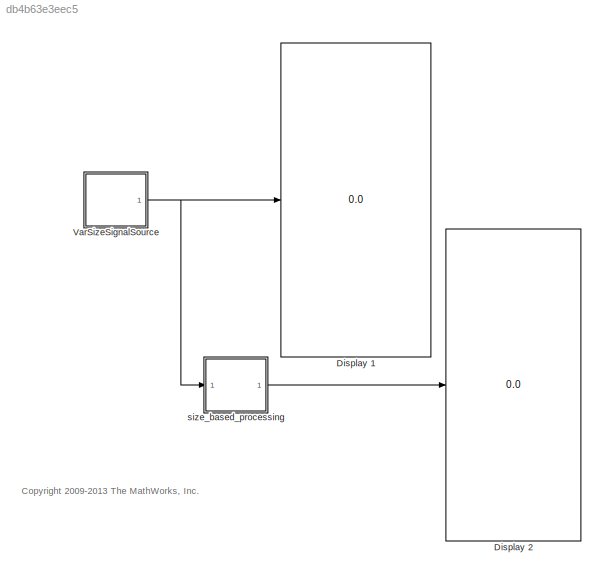
MODEL slx_db4b63e3eec5
KIND model
CONFIG AbsTol = auto
CONFIG EnableMultiTasking = on
CONFIG FixedStep = 0.05
CONFIG MaxStep = auto
CONFIG MinStep = auto
CONFIG RelTol = 1e-3
CONFIG SampleTimeConstraint = Unconstrained
CONFIG Solver = FixedStepDiscrete
CONFIG SolverName = FixedStepDiscrete
CONFIG StartTime = 0.0
CONFIG StopTime = inf
BLOCK [Display] Display 1
  Decimation = 1
  Ports = [1]
BLOCK [Display] Display 2
  Decimation = 1
  Ports = [1]
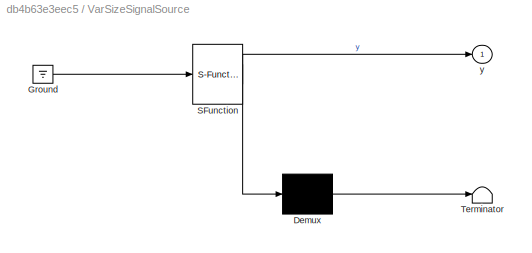
BLOCK [SubSystem] VarSizeSignalSource
  ErrorFcn = Stateflow.Translate.translate
  PermitHierarchicalResolution = ExplicitOnly
  Ports = [0, 1]
  RequestExecContextInheritance = off
  SFBlockType = Chart
  TreatAsAtomicUnit = on
  Variant = off
BLOCK [Demux] VarSizeSignalSource/ Demux 
  Outputs = 1
  Ports = [1, 1]
BLOCK [Ground] VarSizeSignalSource/ Ground 
BLOCK [S-Function] VarSizeSignalSource/ SFunction 
  EnableBusSupport = off
  FunctionName = sf_sfun
  PortCounts = [1 2]
  Ports = [1, 2]
  SFcnIsStateOwnerBlock = off
  SFunctionDeploymentMode = off
  Tag = Stateflow S-Function sf_varsize_example 1
BLOCK [Terminator] VarSizeSignalSource/ Terminator 
BLOCK [Outport] VarSizeSignalSource/y
  IconDisplay = Port number
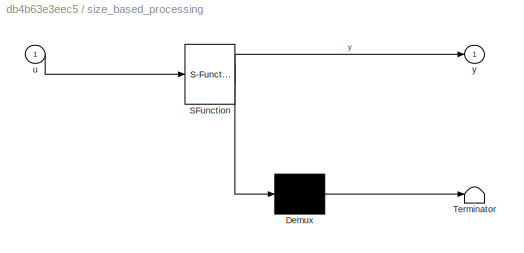
BLOCK [SubSystem] size_based_processing
  ErrorFcn = Stateflow.Translate.translate
  PermitHierarchicalResolution = ExplicitOnly
  Ports = [1, 1]
  RequestExecContextInheritance = off
  SFBlockType = Chart
  TreatAsAtomicUnit = on
  Variant = off
BLOCK [Demux] size_based_processing/ Demux 
  Outputs = 1
  Ports = [1, 1]
BLOCK [S-Function] size_based_processing/ SFunction 
  EnableBusSupport = off
  FunctionName = sf_sfun
  PortCounts = [1 2]
  Ports = [1, 2]
  SFcnIsStateOwnerBlock = off
  SFunctionDeploymentMode = off
  Tag = Stateflow S-Function sf_varsize_example 2
BLOCK [Terminator] size_based_processing/ Terminator 
BLOCK [Inport] size_based_processing/u
  IconDisplay = Port number
BLOCK [Outport] size_based_processing/y
  IconDisplay = Port number
ANNOTATION (root): <copyright redacted>
NET VarSizeSignalSource:1 -> Display 1:1, size_based_processing:1
LINE size_based_processing:1 -> Display 2:1
note: NET lines group one-source signal fan-out (src -> all destinations, sorted); 1:1 wires keep LINE
CHART VarSizeSignalSource states=5 transitions=4
  STATE_LABEL 'generateOutput(len)'
  STATE_LABEL "SCRIPT:\nfunction generateOutput(len)\n%#codegen\nassert(len<=16);\ny = (1:len)';"
  STATE_LABEL 'Scalar\nen: generateOutput(1);\ndu: generateOutput(1);'
  STATE_LABEL 'VectorFull\nen: generateOutput(16);\ndu: generateOutput(16);'
  STATE_LABEL 'VectorPartial\nen: generateOutput(8);\ndu: generateOutput(8);'
  STATE_LABEL 'Use this Stateflow chart to generate an output signal with a variable size.  In this chart,\neach state calls a MATLAB function that assigns to the chart output\na different-sized signal (within the bounds).  During simulation, transitions between states\nchange the size of the signal. You can use this variable-size signal to test other blocks\nand subsystems in your model.'
CHART size_based_processing states=6 transitions=3
  STATE_LABEL 'Scalar\nentry: reset_output();'
  STATE_LABEL 'Vector\nen: compute_output();\ndu: compute_output();'
  STATE_LABEL 'reset_output'
  STATE_LABEL 'SCRIPT:\nfunction reset_output\n%#codegen\ny = 0;'
  STATE_LABEL 'compute_output'
  STATE_LABEL 'SCRIPT:\nfunction compute_output\n%#codegen\ny = sin(u);'
  STATE_LABEL 'isScalar = is_scalar_input'
  STATE_LABEL 'SCRIPT:\nfunction isScalar = is_scalar_input\n%#codegen\nisScalar = length(u)==1;\n'
  STATE_LABEL 'In this chart, MATLAB functions:\n(a) Determine the size of the input signal.\n(b) Use MATLAB syntax to compute variable-size outputs based on inputs.\n(c) Reset the output to zero when the input is scalar.\n\nKey behavior:\n1. Variable-size data are allowed only for chart input and output data.\n2. Variable-size data "u" and "y" do not appear in state actions or on transitions.\n3. MATLAB functions acces...<+146ch>'
